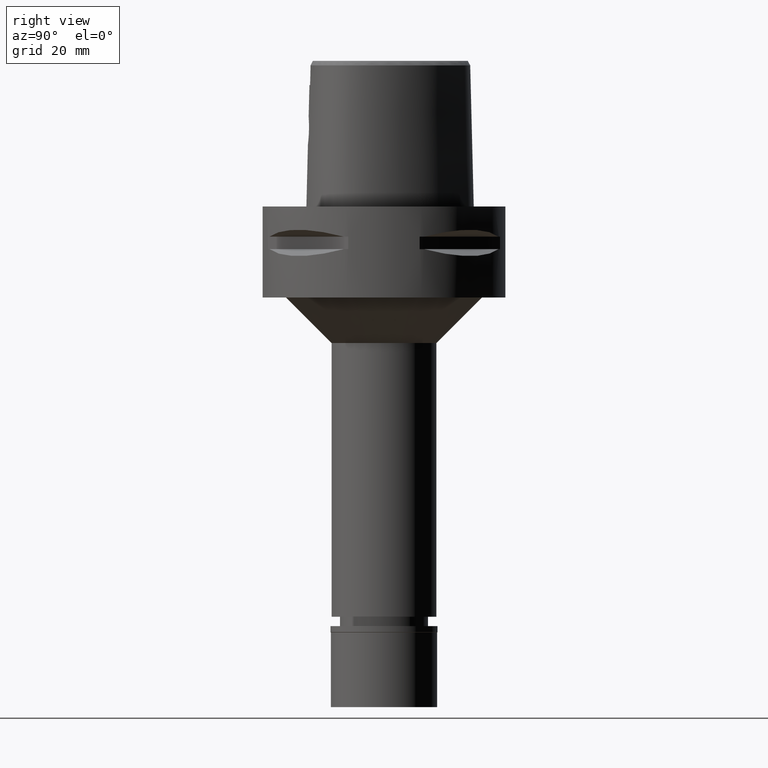
[diagram: clean part render]
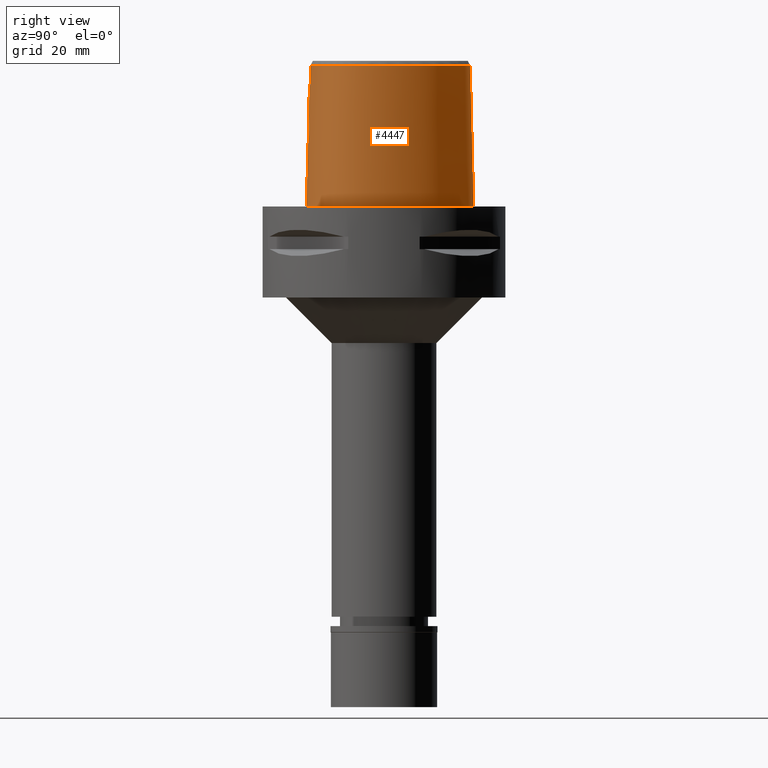
[diagram: same view with one face highlighted and labeled with its STEP entity id]
A machine part, right view. The second image highlights one B-rep face of the part: STEP entity #4447.
In plain terms, the highlighted face is a freeform B-spline surface patch.
Its self-contained STEP definition (entity closure, byte-faithful):
#18 = CARTESIAN_POINT ( 'NONE',  ( -4.858283135684031119E-09, -24.74922215084299282, 33.03333351495449932 ) ) ;
#66 = CARTESIAN_POINT ( 'NONE',  ( 24.77458493493826452, -16.12173828124365826, 1.936385080059110919E-13 ) ) ;
#72 = CARTESIAN_POINT ( 'NONE',  ( 1.372734075386999954E-14, -24.83629963747999980, 29.55000000000000071 ) ) ;
#91 = CARTESIAN_POINT ( 'NONE',  ( 13.21796080545518492, 24.04386718749153928, 1.936385080059110919E-13 ) ) ;
#102 = CARTESIAN_POINT ( 'NONE',  ( 3.756465253620394407, -24.73852494831059445, 27.57169756946008832 ) ) ;
#110 = CARTESIAN_POINT ( 'NONE',  ( -0.5689009026262999980, -25.59577917864000085, -0.9304145084881000338 ) ) ;
#121 = CARTESIAN_POINT ( 'NONE',  ( 27.85475989744193015, -5.337968749999598472, 1.936385080059110919E-13 ) ) ;
#129 = CARTESIAN_POINT ( 'NONE',  ( 4.517116520646564659, -24.75057419275596615, 24.43553773667434470 ) ) ;
#134 = CARTESIAN_POINT ( 'NONE',  ( 23.44929528211999781, -17.78045352003999824, -0.9304145084881000338 ) ) ;
#150 = CARTESIAN_POINT ( 'NONE',  ( 2.592678685477895595, -24.78641481269933777, 28.73923899945411620 ) ) ;
#154 = CARTESIAN_POINT ( 'NONE',  ( 2.354169165264999641, -24.81494117422000301, 31.32395511910000252 ) ) ;
#174 = CARTESIAN_POINT ( 'NONE',  ( 3.512978482362885568, -24.74890643940148394, 27.89278862329918240 ) ) ;
#179 = CARTESIAN_POINT ( 'NONE',  ( -0.5548491714916000683, -24.38637853483000129, 47.45113993289000121 ) ) ;
#204 = CARTESIAN_POINT ( 'NONE',  ( 26.73375369477999897, -11.30662581238999920, 15.19677030531000206 ) ) ;
#226 = CARTESIAN_POINT ( 'NONE',  ( 6.271543170821000324, 28.37237220595000053, -0.9304145084881000338 ) ) ;
#280 = CARTESIAN_POINT ( 'NONE',  ( -1.344666072917000002E-11, 28.41206021534999593, 46.52071719450999154 ) ) ;
#285 = CARTESIAN_POINT ( 'NONE',  ( 5.957940668506999771, 27.62557844127000095, 31.32395511910000252 ) ) ;
#310 = CARTESIAN_POINT ( 'NONE',  ( 26.79474625850000180, 1.906447387536000182, -0.9304145084881000338 ) ) ;
#330 = CARTESIAN_POINT ( 'NONE',  ( 8.153873202538507670, -23.84765792154550113, 46.52069127368177703 ) ) ;
#336 = CARTESIAN_POINT ( 'NONE',  ( 25.62380423723999812, 1.595558235651999945, 47.45113993289000121 ) ) ;
#395 = CARTESIAN_POINT ( 'NONE',  ( 1.732112786592047815, -25.02412118468005531, 20.79259001707724508 ) ) ;
#412 = DIRECTION ( 'NONE',  ( -5.053220550043809941E-13, -0.02499051295420905497, -0.9996876883618630583 ) ) ;
#442 = B_SPLINE_CURVE_WITH_KNOTS ( 'NONE', 3,
 ( #1051, #3868, #5037, #1516 ),
 .UNSPECIFIED., .F., .F.,
 ( 4, 4 ),
 ( 0.0000000000000000000, 1.000000000000000000 ),
 .UNSPECIFIED. ) ;
#474 = EDGE_LOOP ( 'NONE', ( #2315, #4900, #3980, #4827, #3708, #725, #4693, #1430 ) ) ;
#476 = CARTESIAN_POINT ( 'NONE',  ( 3.196341748950112027, -24.92467674393278898, 21.76178677583788357 ) ) ;
#505 = CARTESIAN_POINT ( 'NONE',  ( 4.255303340876159801, -24.72011691775877296, 26.61166571686793958 ) ) ;
#510 = CARTESIAN_POINT ( 'NONE',  ( 26.34453530897999940, -11.19579296915999755, 31.32395511910000252 ) ) ;
#534 = CARTESIAN_POINT ( 'NONE',  ( 4.437987378315740195, -24.71842636459945552, 26.01433587875822440 ) ) ;
#539 = CARTESIAN_POINT ( 'NONE',  ( -0.8462047057259000082, -25.18772799770000148, 15.19677030531000206 ) ) ;
#540 = VECTOR ( 'NONE', #412, 1000.000000000000114 ) ;
#549 = CARTESIAN_POINT ( 'NONE',  ( 23.43253028748441480, -17.76420410156499230, 1.936385080059110919E-13 ) ) ;
#551 = EDGE_CURVE ( 'NONE', #883, #2701, #2817, .T. ) ;
#558 = CARTESIAN_POINT ( 'NONE',  ( 4.523121810470201787, -24.72136632330987993, 25.57645994462144401 ) ) ;
#562 = CARTESIAN_POINT ( 'NONE',  ( 6.584202213324999775, -24.46732445111000231, 31.32395511910000252 ) ) ;
#569 = CARTESIAN_POINT ( 'NONE',  ( 21.42129059363730192, -19.59889648437211207, 1.936385080059110919E-13 ) ) ;
#580 = CARTESIAN_POINT ( 'NONE',  ( 4.043275511959485868, -24.83139551622599583, 22.91194186429490642 ) ) ;
#584 = CARTESIAN_POINT ( 'NONE',  ( 26.66096789088853924, -6.450661550927339505, 46.52070141660807678 ) ) ;
#585 = CARTESIAN_POINT ( 'NONE',  ( 26.37046814612999768, -13.40391019852000021, -0.9304145084881000338 ) ) ;
#606 = CARTESIAN_POINT ( 'NONE',  ( 1.153626000818432917, -24.82864766317860372, 29.44729853102414907 ) ) ;
#612 = CARTESIAN_POINT ( 'NONE',  ( 25.63065464978999941, -13.07945039994000069, 31.32395511910000252 ) ) ;
#688 = CARTESIAN_POINT ( 'NONE',  ( 17.14519264690000355, 19.02219895240999747, 31.32395511910000252 ) ) ;
#710 = CARTESIAN_POINT ( 'NONE',  ( 10.99875819582650038, 24.38035098655915078, 46.52071268652615288 ) ) ;
#716 = CARTESIAN_POINT ( 'NONE',  ( 26.36214108449999927, -1.945111154234999917, 47.45113993289000121 ) ) ;
#725 = ORIENTED_EDGE ( 'NONE', *, *, #2553, .F. ) ;
#733 = CARTESIAN_POINT ( 'NONE',  ( 17.84219066873730242, -20.48406917474295952, 46.52069465465719134 ) ) ;
#738 = CARTESIAN_POINT ( 'NONE',  ( 2.892852094095000215, 28.17405733916999822, 47.45113993289000121 ) ) ;
#767 = CARTESIAN_POINT ( 'NONE',  ( 1.372734075386999954E-14, -24.83629963747999980, 29.55000000000000071 ) ) ;
#799 = CARTESIAN_POINT ( 'NONE',  ( 3.100243586364356485, -24.93331626314397909, 21.66917441973969716 ) ) ;
#823 = CARTESIAN_POINT ( 'NONE',  ( 2.955264688608111534, -24.94567926532404201, 21.53931554468372767 ) ) ;
#857 = VERTEX_POINT ( 'NONE', #2557 ) ;
#876 = CARTESIAN_POINT ( 'NONE',  ( 3.156365463052560827, -24.92830912253881337, 21.72269515073477919 ) ) ;
#883 = VERTEX_POINT ( 'NONE', #2168 ) ;
#891 = CARTESIAN_POINT ( 'NONE',  ( -1.467048192861000018E-12, -25.06378435148999984, 20.44999999999999929 ) ) ;
#898 = CARTESIAN_POINT ( 'NONE',  ( 3.560464869665294074, -24.88898092548868490, 22.16607190872599631 ) ) ;
#902 = CARTESIAN_POINT ( 'NONE',  ( 26.90338675189000028, -8.653104851888999249, 31.32395511910000252 ) ) ;
#909 = VERTEX_POINT ( 'NONE', #891 ) ;
#920 = CARTESIAN_POINT ( 'NONE',  ( 3.739368471919781722, -24.86915408846631337, 22.40675187304728411 ) ) ;
#926 = CARTESIAN_POINT ( 'NONE',  ( 23.81701504514999712, -15.41783915067999899, 47.45113993289000121 ) ) ;
#947 = CARTESIAN_POINT ( 'NONE',  ( 3.937353243848183304, -24.84519667286566147, 22.71482954510167929 ) ) ;
#954 = CARTESIAN_POINT ( 'NONE',  ( 18.36798846343999969, -21.11924011246999910, 15.19677030531000206 ) ) ;
#968 = CARTESIAN_POINT ( 'NONE',  ( 2.676740185523932336, -25.57499999999909690, 1.936385080059110919E-13 ) ) ;
#976 = CARTESIAN_POINT ( 'NONE',  ( 3.861082105047249691, -24.85463631592573819, 22.58840412900303107 ) ) ;
#980 = CARTESIAN_POINT ( 'NONE',  ( 24.14246363514000038, -15.65707284211999983, 31.32395511910000252 ) ) ;
#998 = CARTESIAN_POINT ( 'NONE',  ( 3.458990831523887088, -24.75121472495258246, 27.95724070545702133 ) ) ;
#1002 = CARTESIAN_POINT ( 'NONE',  ( 22.86810880140999913, -17.21714034622999989, 31.32395511910000252 ) ) ;
#1025 = EDGE_CURVE ( 'NONE', #4698, #2701, #442, .T. ) ;
#1031 = CARTESIAN_POINT ( 'NONE',  ( -0.8299363393493000007, 28.36186519450000176, 47.45113993289000121 ) ) ;
#1051 = CARTESIAN_POINT ( 'NONE',  ( 4.602926386878999132, -24.35121850029999990, 40.00000005214999987 ) ) ;
#1059 = CARTESIAN_POINT ( 'NONE',  ( 22.00846691978999914, 12.70659196185999917, 15.19677030531000206 ) ) ;
#1078 = CARTESIAN_POINT ( 'NONE',  ( 26.53043812451489103, -3.252830914797765871, 46.52070254359987445 ) ) ;
#1085 = CARTESIAN_POINT ( 'NONE',  ( 16.83227267690000062, 18.76477910611999889, 47.45113993289000121 ) ) ;
#1112 = CARTESIAN_POINT ( 'NONE',  ( 27.16099297695999937, -1.823107493840000037, 15.19677030531000206 ) ) ;
#1187 = CARTESIAN_POINT ( 'NONE',  ( 1.541632511944354134, -24.57506718866263284, 40.00000010061339140 ) ) ;
#1224 = CARTESIAN_POINT ( 'NONE',  ( -4.849489465481114265E-09, -24.66214466420069229, 36.51666702990934255 ) ) ;
#1225 = CARTESIAN_POINT ( 'NONE',  ( 1.717599865389534131, -25.02478947459729497, 20.78664336873126928 ) ) ;
#1227 = VERTEX_POINT ( 'NONE', #1624 ) ;
#1256 = B_SPLINE_CURVE_WITH_KNOTS ( 'NONE', 3,
 ( #2718, #2352, #1187, #3981 ),
 .UNSPECIFIED., .F., .F.,
 ( 4, 4 ),
 ( 0.0000000000000000000, 1.000000000000000000 ),
 .UNSPECIFIED. ) ;
#1266 = CARTESIAN_POINT ( 'NONE',  ( 25.20914249986367039, 6.827421875000078799, 1.936385080059110919E-13 ) ) ;
#1274 = CARTESIAN_POINT ( 'NONE',  ( 1.952635857166629574, -25.01389984458334226, 20.88358337727349578 ) ) ;
#1305 = CARTESIAN_POINT ( 'NONE',  ( 4.412773899541610589, -24.77516587915418711, 23.85162301166201360 ) ) ;
#1319 = CARTESIAN_POINT ( 'NONE',  ( 11.74025985475885925, -24.13566406250557961, 1.936385080059110919E-13 ) ) ;
#1327 = CARTESIAN_POINT ( 'NONE',  ( 3.227783996387032062, -24.76107025147648244, 28.20686722737176666 ) ) ;
#1331 = CARTESIAN_POINT ( 'NONE',  ( -0.8321552616341000297, -24.38153492969000169, 47.45113993289000121 ) ) ;
#1337 = CARTESIAN_POINT ( 'NONE',  ( 3.149084874525346134, 29.34015624999947391, 1.936385080059110919E-13 ) ) ;
#1345 = CARTESIAN_POINT ( 'NONE',  ( 3.695416430653969186, -24.87420445000564229, 22.34444809527642661 ) ) ;
#1351 = CARTESIAN_POINT ( 'NONE',  ( 2.334473170698999844, -24.41160993157999926, 47.45113993289000121 ) ) ;
#1363 = CARTESIAN_POINT ( 'NONE',  ( 6.262496944792713904, 28.35083007812269784, 1.936385080059110919E-13 ) ) ;
#1374 = CARTESIAN_POINT ( 'NONE',  ( 3.666127388018138422, -24.74236822830306082, 27.69981209000894040 ) ) ;
#1380 = CARTESIAN_POINT ( 'NONE',  ( 21.43542293296000167, -19.61750339194999881, -0.9304145084881000338 ) ) ;
#1400 = CARTESIAN_POINT ( 'NONE',  ( 2.560989721132870489, -24.78761092133475330, 28.76100236096378282 ) ) ;
#1404 = CARTESIAN_POINT ( 'NONE',  ( 14.86558285813000069, -21.85772789175999975, 47.45113993289000121 ) ) ;
#1422 = CARTESIAN_POINT ( 'NONE',  ( 13.23332856345000152, 24.06149249962999903, -0.9304145084881000338 ) ) ;
#1430 = ORIENTED_EDGE ( 'NONE', *, *, #3459, .T. ) ;
#1452 = CARTESIAN_POINT ( 'NONE',  ( -0.5711750984050999458, 28.78275047861000147, 31.32395511910000252 ) ) ;
#1470 = CARTESIAN_POINT ( 'NONE',  ( 5.530043876418035964, 27.35846726636340875, 46.52071494050975531 ) ) ;
#1475 = CARTESIAN_POINT ( 'NONE',  ( 0.7484115208160000421, 29.63215901995999957, -0.9304145084881000338 ) ) ;
#1501 = CARTESIAN_POINT ( 'NONE',  ( 12.43420514770999930, 23.14497626841999889, 47.45113993289000121 ) ) ;
#1502 = CARTESIAN_POINT ( 'NONE',  ( -1.451045074373000022E-08, -24.57504746727000011, 40.00000005214000254 ) ) ;
#1516 = CARTESIAN_POINT ( 'NONE',  ( 4.472216720976999405, -24.20009030094000124, 46.52069014668999358 ) ) ;
#1520 = CARTESIAN_POINT ( 'NONE',  ( 24.69258566271476951, -14.08975149522207815, 46.52069831738057104 ) ) ;
#1527 = CARTESIAN_POINT ( 'NONE',  ( -0.8562942210795000397, 28.76413530191999968, 31.32395511910000252 ) ) ;
#1550 = CARTESIAN_POINT ( 'NONE',  ( 11.70978320535569672, -23.05272019185310484, 46.52069240067361022 ) ) ;
#1557 = CARTESIAN_POINT ( 'NONE',  ( 1.609901483201681804, -25.02958960435420366, 20.74402583925055055 ) ) ;
#1608 = CARTESIAN_POINT ( 'NONE',  ( 3.418326490945260421, -24.90370471633881166, 21.99337763265281964 ) ) ;
#1624 = CARTESIAN_POINT ( 'NONE',  ( -1.180411260321999901E-11, -25.57499999999999929, 5.639932965095998436E-14 ) ) ;
#1702 = CARTESIAN_POINT ( 'NONE',  ( 6.691850463824464690, -25.24546875000320512, 1.936385080059110919E-13 ) ) ;
#1713 = CARTESIAN_POINT ( 'NONE',  ( 4.301663164393235483, -24.71910450366888767, 26.48607042045131976 ) ) ;
#1717 = CARTESIAN_POINT ( 'NONE',  ( 15.01246783751000002, -22.23414196204000248, 31.32395511910000252 ) ) ;
#1734 = CARTESIAN_POINT ( 'NONE',  ( 2.744259390201259752, -24.78063453097679414, 28.63060330404775655 ) ) ;
#1738 = CARTESIAN_POINT ( 'NONE',  ( 24.46791222514000097, -15.89630653355000156, 15.19677030531000206 ) ) ;
#1745 = CARTESIAN_POINT ( 'NONE',  ( 26.77222814270692552, 1.900468749999807194, 1.936385080059110919E-13 ) ) ;
#1754 = CARTESIAN_POINT ( 'NONE',  ( 4.544345534604060433, -24.73984392723427206, 24.75509518056023595 ) ) ;
#1760 = CARTESIAN_POINT ( 'NONE',  ( -0.8391799836800000190, -24.78463146369999848, 31.32395511910000252 ) ) ;
#1781 = CARTESIAN_POINT ( 'NONE',  ( 4.537017841947838193, -24.74324082396890034, 24.64916680772596536 ) ) ;
#1788 = CARTESIAN_POINT ( 'NONE',  ( 6.695047936613000239, -25.26858194700000126, -0.9304145084881000338 ) ) ;
#1811 = CARTESIAN_POINT ( 'NONE',  ( 25.95531692319000072, -11.08496012592000213, 47.45113993289000121 ) ) ;
#1834 = CARTESIAN_POINT ( 'NONE',  ( 3.154109046676000006, 29.36302093453000239, -0.9304145084881000338 ) ) ;
#1891 = CARTESIAN_POINT ( 'NONE',  ( 5.801139417351000027, 27.25218155893000116, 47.45113993289000121 ) ) ;
#1916 = CARTESIAN_POINT ( 'NONE',  ( 25.23075706255999862, 6.836210430866999310, -0.9304145084881000338 ) ) ;
#1933 = LINE ( 'NONE', #4006, #540 ) ;
#1936 = CARTESIAN_POINT ( 'NONE',  ( 26.56868348264517365, -7.988862950299195020, 46.52070085311217440 ) ) ;
#1944 = CARTESIAN_POINT ( 'NONE',  ( 24.48145222242999708, 6.531540494147000331, 31.32395511910000252 ) ) ;
#1976 = CARTESIAN_POINT ( 'NONE',  ( 2.192364263587614381, -25.00047163864963196, 21.00192190659220870 ) ) ;
#2096 = CARTESIAN_POINT ( 'NONE',  ( 27.68378753843713369, -8.751933593749983586, 1.936385080059110919E-13 ) ) ;
#2105 = CARTESIAN_POINT ( 'NONE',  ( 4.337077477086221045, -24.71860659089787049, 26.37767366826318494 ) ) ;
#2110 = CARTESIAN_POINT ( 'NONE',  ( 27.06950057439000190, -5.357664960371000262, 31.32395511910000252 ) ) ;
#2121 = CARTESIAN_POINT ( 'NONE',  ( 15.29776366286365530, -22.96525390624768193, 1.936385080059110919E-13 ) ) ;
#2133 = CARTESIAN_POINT ( 'NONE',  ( 3.252660951006618895, -24.76001264346000497, 28.18163816682488232 ) ) ;
#2138 = CARTESIAN_POINT ( 'NONE',  ( 6.528779351682000076, -24.06669570316000062, 47.45113993289000121 ) ) ;
#2146 = CARTESIAN_POINT ( 'NONE',  ( 27.10051717370692970, -11.41106445312596485, 1.936385080059110919E-13 ) ) ;
#2155 = CARTESIAN_POINT ( 'NONE',  ( 4.208386412724068215, -24.72133790640166495, 26.72975093107613631 ) ) ;
#2159 = CARTESIAN_POINT ( 'NONE',  ( 25.30843713770000036, -14.61183299400000024, 15.19677030531000206 ) ) ;
#2168 = CARTESIAN_POINT ( 'NONE',  ( -1.344666072917000002E-11, 28.41206021534999593, 46.52071719450999154 ) ) ;
#2174 = CARTESIAN_POINT ( 'NONE',  ( 4.212885333431600543, -24.72121330192674193, 26.71877560768000492 ) ) ;
#2178 = CARTESIAN_POINT ( 'NONE',  ( 22.57751556106000024, -16.93548375932999761, 47.45113993289000121 ) ) ;
#2200 = CARTESIAN_POINT ( 'NONE',  ( 0.5545157691441516823, -24.83629963747999980, 29.55000000000000071 ) ) ;
#2206 = CARTESIAN_POINT ( 'NONE',  ( 25.26074790161000294, -12.91722050065999916, 47.45113993289000121 ) ) ;
#2246 = CARTESIAN_POINT ( 'NONE',  ( 23.08984995680107133, -16.35075897049449623, 46.52069719038878048 ) ) ;
#2269 = EDGE_CURVE ( 'NONE', #883, #857, #3881, .T. ) ;
#2282 = CARTESIAN_POINT ( 'NONE',  ( 9.105791459169999769, 26.46675913444000017, 15.19677030531000206 ) ) ;
#2291 = VERTEX_POINT ( 'NONE', #1502 ) ;
#2302 = CARTESIAN_POINT ( 'NONE',  ( 26.30769162470627975, -1.593520748815488330, 46.52070310709577683 ) ) ;
#2309 = CARTESIAN_POINT ( 'NONE',  ( 24.85610464249000273, 6.683875462506999376, 15.19677030531000206 ) ) ;
#2315 = ORIENTED_EDGE ( 'NONE', *, *, #2269, .F. ) ;
#2326 = CARTESIAN_POINT ( 'NONE',  ( 13.63304938779966768, 22.11238814014000553, 46.52071155953435522 ) ) ;
#2332 = CARTESIAN_POINT ( 'NONE',  ( 22.35908247837000218, 12.90902243090999946, -0.9304145084881000338 ) ) ;
#2352 = CARTESIAN_POINT ( 'NONE',  ( 3.083107003972780813, -24.50056602138241857, 40.00000010061339850 ) ) ;
#2362 = CARTESIAN_POINT ( 'NONE',  ( 0.5741109003797177923, -25.06046598330700093, 20.47661985235027160 ) ) ;
#2452 = VECTOR ( 'NONE', #2700, 1000.000000000000227 ) ;
#2493 = CARTESIAN_POINT ( 'NONE',  ( 3.606429171763831931, -24.88406245827872354, 22.22480142265834502 ) ) ;
#2498 = CARTESIAN_POINT ( 'NONE',  ( 27.87808443179000051, -5.337383714047999383, -0.9304145084881000338 ) ) ;
#2517 = CARTESIAN_POINT ( 'NONE',  ( 4.550159243768820971, -24.72595648767389065, 25.28426205013431272 ) ) ;
#2522 = CARTESIAN_POINT ( 'NONE',  ( 2.373865159830000238, -25.21827241685999610, 15.19677030531000206 ) ) ;
#2541 = CARTESIAN_POINT ( 'NONE',  ( 4.141553595727621051, -24.81790787904300899, 23.11546483665197016 ) ) ;
#2546 = CARTESIAN_POINT ( 'NONE',  ( 26.66520864569000082, -5.367805583532000213, 47.45113993289000121 ) ) ;
#2553 = EDGE_CURVE ( 'NONE', #909, #4617, #4982, .T. ) ;
#2555 = CARTESIAN_POINT ( 'NONE',  ( 25.63812389860136065, -14.80217773437518325, 1.936385080059110919E-13 ) ) ;
#2557 = CARTESIAN_POINT ( 'NONE',  ( 3.071360863650999976E-11, 29.57499999998999840, 4.999704354228999432E-14 ) ) ;
#2564 = CARTESIAN_POINT ( 'NONE',  ( 4.325577296999668420, -24.79069917426006242, 23.55238152010286612 ) ) ;
#2570 = CARTESIAN_POINT ( 'NONE',  ( 15.15935281690000025, -22.61055603232999900, 15.19677030531000206 ) ) ;
#2586 = CARTESIAN_POINT ( 'NONE',  ( 1.779627886569931317, -24.81238721778816014, 29.18772178098401326 ) ) ;
#2592 = CARTESIAN_POINT ( 'NONE',  ( 24.60869380845000265, -14.20783599401000075, 47.45113993289000121 ) ) ;
#2669 = CARTESIAN_POINT ( 'NONE',  ( 26.40443225142000117, 1.802817670242000014, 15.19677030531000206 ) ) ;
#2691 = CARTESIAN_POINT ( 'NONE',  ( 1.375467128702860808, 28.41206022877951298, 46.52071663099748378 ) ) ;
#2698 = CARTESIAN_POINT ( 'NONE',  ( 3.067023395816000253, 28.96669973608000248, 15.19677030531000206 ) ) ;
#2700 = DIRECTION ( 'NONE',  ( 9.489638221839231937E-13, 0.02499051293976060906, -0.9996876883622242138 ) ) ;
#2701 = VERTEX_POINT ( 'NONE', #4992 ) ;
#2718 = CARTESIAN_POINT ( 'NONE',  ( 4.602926386878999132, -24.35121850029999990, 40.00000005214999987 ) ) ;
#2719 = CARTESIAN_POINT ( 'NONE',  ( 23.53784508590017310, -15.81022840324934187, 46.52069747213671747 ) ) ;
#2777 = CARTESIAN_POINT ( 'NONE',  ( 1.372734075386999954E-14, -24.83629963747999980, 29.55000000000000071 ) ) ;
#2778 = CARTESIAN_POINT ( 'NONE',  ( 1.157035249423385981, -25.04636291852922270, 20.59695966232725439 ) ) ;
#2807 = CARTESIAN_POINT ( 'NONE',  ( 3.180359783745228874, -24.92613363770006885, 21.74608895217526339 ) ) ;
#2817 = B_SPLINE_CURVE_WITH_KNOTS ( 'NONE', 3,
 ( #280, #2691, #4279, #1470, #4949, #710, #2326, #3921, #3748, #2302, #1078, #584, #1936, #4708, #3896, #1520, #3062, #2719, #2246, #4557, #4653, #733, #2962, #1550, #330, #3535 ),
 .UNSPECIFIED., .F., .F.,
 ( 4, 2, 2, 2, 2, 2, 2, 2, 2, 2, 2, 2, 4 ),
 ( 0.0000000000000000000, 0.06250000000000005551, 0.1250000000000001388, 0.2500000000000002220, 0.5000000000000003331, 0.5625000000000003331, 0.6250000000000004441, 0.6875000000000004441, 0.7187500000000005551, 0.7500000000000005551, 0.8125000000000003331, 0.8750000000000002220, 1.000000000000000000 ),
 .UNSPECIFIED. ) ;
#2862 = CARTESIAN_POINT ( 'NONE',  ( 2.890648186359091376, -24.95092863274545181, 21.48525694161331856 ) ) ;
#2879 = CARTESIAN_POINT ( 'NONE',  ( 22.33885465768270251, 12.89734375000327127, 1.936385080059110919E-13 ) ) ;
#2895 = CARTESIAN_POINT ( 'NONE',  ( 27.30517725585000122, -8.703986976411000498, 15.19677030531000206 ) ) ;
#2911 = CARTESIAN_POINT ( 'NONE',  ( 3.115833847004890522, -24.76582665838796871, 28.31908668410575203 ) ) ;
#2915 = CARTESIAN_POINT ( 'NONE',  ( 11.43012067991999992, -22.98864605308000009, 47.45113993289000121 ) ) ;
#2922 = CARTESIAN_POINT ( 'NONE',  ( 27.53737511859980813, -1.765625000000520473, 1.936385080059110919E-13 ) ) ;
#2930 = CARTESIAN_POINT ( 'NONE',  ( 3.996558060065838358, -24.72854169055268159, 27.19514510550434849 ) ) ;
#2937 = CARTESIAN_POINT ( 'NONE',  ( 26.50159624792000201, -8.602222727365999688, 47.45113993289000121 ) ) ;
#2948 = CARTESIAN_POINT ( 'NONE',  ( 1.049694958193650773, 29.57499999999500417, 1.936385080059110919E-13 ) ) ;
#2957 = CARTESIAN_POINT ( 'NONE',  ( 2.832428424601074912, -24.77719445135567966, 28.56165880794260659 ) ) ;
#2962 = CARTESIAN_POINT ( 'NONE',  ( 16.39076485917603421, -21.20751266142971048, 46.52069409116131737 ) ) ;
#2963 = CARTESIAN_POINT ( 'NONE',  ( -0.8532294277717999975, -25.59082453171000182, -0.9304145084881000338 ) ) ;
#2983 = CARTESIAN_POINT ( 'NONE',  ( 1.883305297023831759, -24.80958828430668461, 29.14211520706646041 ) ) ;
#2987 = CARTESIAN_POINT ( 'NONE',  ( 21.19046238470000176, -19.29498366059999981, 15.19677030531000206 ) ) ;
#3011 = CARTESIAN_POINT ( 'NONE',  ( 0.6828676546388999791, 28.41974803165000196, 47.45113993289000121 ) ) ;
#3041 = CARTESIAN_POINT ( 'NONE',  ( 6.114741919663999603, 27.99897532360999719, 15.19677030531000206 ) ) ;
#3062 = CARTESIAN_POINT ( 'NONE',  ( 24.33934953590697248, -14.68006085516426928, 46.52069803563263406 ) ) ;
#3070 = CARTESIAN_POINT ( 'NONE',  ( 2.979937744954999967, 28.57037853762000168, 31.32395511910000252 ) ) ;
#3092 = CARTESIAN_POINT ( 'NONE',  ( 24.10679980236999853, 6.379205525787000397, 47.45113993289000121 ) ) ;
#3094 = CARTESIAN_POINT ( 'NONE',  ( -1.344666072917000002E-11, 28.41206021534999593, 46.52071719450999154 ) ) ;
#3146 = CARTESIAN_POINT ( 'NONE',  ( 1.726554843534537254, -25.02437791916835863, 20.79030502623887244 ) ) ;
#3169 = CARTESIAN_POINT ( 'NONE',  ( 1.672780685871506190, -25.02682213713908865, 20.76857498625506082 ) ) ;
#3198 = CARTESIAN_POINT ( 'NONE',  ( 0.2837429639712363838, -25.06378435148999984, 20.45000000000000639 ) ) ;
#3227 = CARTESIAN_POINT ( 'NONE',  ( 1.704163054240332764, -25.02540437729527767, 20.78117410888069827 ) ) ;
#3251 = CARTESIAN_POINT ( 'NONE',  ( -1.467048192861000018E-12, -25.06378435148999984, 20.44999999999999929 ) ) ;
#3258 = EDGE_CURVE ( 'NONE', #909, #1227, #1933, .T. ) ;
#3295 = CARTESIAN_POINT ( 'NONE',  ( -1.180411260321999901E-11, -25.57499999999999929, 5.639932965095998436E-14 ) ) ;
#3305 = CARTESIAN_POINT ( 'NONE',  ( 3.373359712603105631, -24.75487047605666291, 28.05365220515218638 ) ) ;
#3309 = CARTESIAN_POINT ( 'NONE',  ( 11.64093423667000060, -23.76831842549999863, 15.19677030531000206 ) ) ;
#3327 = CARTESIAN_POINT ( 'NONE',  ( 2.284825071854698741, -24.79755434855703911, 28.93755567618812918 ) ) ;
#3331 = CARTESIAN_POINT ( 'NONE',  ( 15.30623779628999870, -22.98697010260999818, -0.9304145084881000338 ) ) ;
#3339 = CARTESIAN_POINT ( 'NONE',  ( 17.75297951169826050, 19.52218749999231306, 1.936385080059110919E-13 ) ) ;
#3349 = EDGE_CURVE ( 'NONE', #4698, #2291, #1256, .T. ) ;
#3351 = CARTESIAN_POINT ( 'NONE',  ( 4.186622009783886433, -24.81141158316093609, 23.21777758281611526 ) ) ;
#3359 = FACE_OUTER_BOUND ( 'NONE', #474, .T. ) ;
#3381 = CARTESIAN_POINT ( 'NONE',  ( 3.237005511786715584, -24.76067832112077483, 28.19756469887045114 ) ) ;
#3385 = CARTESIAN_POINT ( 'NONE',  ( 2.393561154396000035, -25.62160365948999896, -0.9304145084881000338 ) ) ;
#3404 = CARTESIAN_POINT ( 'NONE',  ( 27.70696775981999949, -8.754869100934000059, -0.9304145084881000338 ) ) ;
#3429 = CARTESIAN_POINT ( 'NONE',  ( 26.76156703072999932, -1.884109324037999800, 31.32395511910000252 ) ) ;
#3459 = EDGE_CURVE ( 'NONE', #1227, #857, #4602, .T. ) ;
#3464 = CARTESIAN_POINT ( 'NONE',  ( 12.96695409153999989, 23.75598708922999691, 15.19677030531000206 ) ) ;
#3490 = CARTESIAN_POINT ( 'NONE',  ( 0.7265635654237000418, 29.22802202384999859, 15.19677030531000206 ) ) ;
#3512 = CARTESIAN_POINT ( 'NONE',  ( 9.316733117680998433, 26.81182150707000034, -0.9304145084881000338 ) ) ;
#3535 = CARTESIAN_POINT ( 'NONE',  ( 4.472216720976999405, -24.20009030094000124, 46.52069014668999358 ) ) ;
#3542 = CARTESIAN_POINT ( 'NONE',  ( 21.30723580263000017, 12.30173102376999950, 47.45113993289000121 ) ) ;
#3567 = CARTESIAN_POINT ( 'NONE',  ( 4.602926386878999132, -24.35121850029999990, 40.00000005214999987 ) ) ;
#3568 = CARTESIAN_POINT ( 'NONE',  ( 3.051956606900625868, -24.93748982820228122, 21.62510482542849388 ) ) ;
#3592 = CARTESIAN_POINT ( 'NONE',  ( 2.697261088284059749, -24.96604596303033219, 21.33198344650103806 ) ) ;
#3663 = CARTESIAN_POINT ( 'NONE',  ( 26.34912737219712042, -13.39455078125327248, 1.936385080059110919E-13 ) ) ;
#3685 = CARTESIAN_POINT ( 'NONE',  ( 18.55019649082655064, -21.45394531249635151, 1.936385080059110919E-13 ) ) ;
#3695 = CARTESIAN_POINT ( 'NONE',  ( 4.220110851308596978, -24.72101730040710521, 26.70095761995009198 ) ) ;
#3700 = CARTESIAN_POINT ( 'NONE',  ( 11.74634101504999961, -24.15815461170999967, -0.9304145084881000338 ) ) ;
#3708 = ORIENTED_EDGE ( 'NONE', *, *, #4657, .T. ) ;
#3712 = CARTESIAN_POINT ( 'NONE',  ( 3.071360863650999976E-11, 29.57499999998999840, 4.999704354228999432E-14 ) ) ;
#3723 = CARTESIAN_POINT ( 'NONE',  ( 4.172398775490914424, -24.81348664747168442, 23.18477895933815347 ) ) ;
#3727 = CARTESIAN_POINT ( 'NONE',  ( -0.5595330818698999176, -24.78951208276999907, 31.32395511910000252 ) ) ;
#3744 = CARTESIAN_POINT ( 'NONE',  ( 3.275992991611894389, -24.75902016830564989, 28.15772619068093618 ) ) ;
#3748 = CARTESIAN_POINT ( 'NONE',  ( 24.48700992949116895, 6.834036305496048236, 46.52070592457529585 ) ) ;
#3749 = CARTESIAN_POINT ( 'NONE',  ( 27.56041892318999942, -1.762105663643000142, -0.9304145084881000338 ) ) ;
#3766 = CARTESIAN_POINT ( 'NONE',  ( 4.115420520914923941, -24.72394829500669289, 26.95489229165172063 ) ) ;
#3792 = B_SPLINE_SURFACE_WITH_KNOTS ( 'NONE', 3, 3, ( 
 ( #2963, #539, #1760, #1331 ),
 ( #110, #4139, #3727, #179 ),
 ( #3385, #2522, #154, #1351 ),
 ( #1788, #4974, #562, #2138 ),
 ( #3700, #3309, #4092, #2915 ),
 ( #3331, #2570, #1717, #1404 ),
 ( #4950, #954, #4160, #4485 ),
 ( #1380, #2987, #4579, #4996 ),
 ( #134, #4505, #1002, #2178 ),
 ( #4558, #1738, #980, #926 ),
 ( #4115, #2159, #4921, #2592 ),
 ( #585, #4184, #612, #2206 ),
 ( #3799, #204, #510, #1811 ),
 ( #3404, #2895, #902, #2937 ),
 ( #2498, #4533, #2110, #2546 ),
 ( #3749, #1112, #3429, #716 ),
 ( #310, #2669, #3821, #336 ),
 ( #1916, #2309, #1944, #3092 ),
 ( #2332, #1059, #4683, #3542 ),
 ( #4254, #4637, #688, #1085 ),
 ( #1422, #3464, #3847, #1501 ),
 ( #3512, #2282, #3879, #4606 ),
 ( #226, #3041, #285, #1891 ),
 ( #1834, #2698, #3070, #738 ),
 ( #1475, #3490, #5051, #3011 ),
 ( #5021, #3929, #1452, #5096 ),
 ( #5072, #4288, #1527, #1031 ) ),
 .UNSPECIFIED., .F., .F., .F.,
 ( 4, 1, 1, 1, 1, 1, 1, 1, 1, 1, 1, 1, 1, 1, 1, 1, 1, 1, 1, 1, 1, 1, 1, 1, 4 ),
 ( 4, 4 ),
 ( -0.008851417483057000962, 0.0000000000000000000, 0.08333333333341000349, 0.1250000000001000033, 0.1666666666667000196, 0.2083333333333000081, 0.2500000000000000000, 0.2916666666666999919, 0.3124999999998999689, 0.3333333333332000326, 0.3541666666666000163, 0.3749999999998999689, 0.4166666666666000163, 0.4583333333332000326, 0.4999999999997999933, 0.5416666666664999852, 0.5833333333331000015, 0.6666666666664999852, 0.7499999999997000177, 0.8333333333329999704, 0.8749999999995999866, 0.9166666666663000340, 0.9583333333329000503, 1.000000000000000000, 1.012009199036000062 ),
 ( 4.566989578181000008E-09, 0.9999997670837000863 ),
 .UNSPECIFIED. ) ;
#3799 = CARTESIAN_POINT ( 'NONE',  ( 27.12297208057999853, -11.41745865561999906, -0.9304145084881000338 ) ) ;
#3821 = CARTESIAN_POINT ( 'NONE',  ( 26.01411824432999964, 1.699187952947000202, 31.32395511910000252 ) ) ;
#3847 = CARTESIAN_POINT ( 'NONE',  ( 12.70057961961999915, 23.45048167883000190, 31.32395511910000252 ) ) ;
#3868 = CARTESIAN_POINT ( 'NONE',  ( 4.560197243509509057, -24.30012338778693248, 42.17356341699667155 ) ) ;
#3879 = CARTESIAN_POINT ( 'NONE',  ( 8.894849800659001104, 26.12169676181000000, 31.32395511910000252 ) ) ;
#3881 = LINE ( 'NONE', #3094, #2452 ) ;
#3896 = CARTESIAN_POINT ( 'NONE',  ( 25.61240997289448984, -12.23358473965965842, 46.52069916262443883 ) ) ;
#3921 = CARTESIAN_POINT ( 'NONE',  ( 20.76159157986941750, 13.99289103072035090, 46.52070817855889118 ) ) ;
#3929 = CARTESIAN_POINT ( 'NONE',  ( -0.5886350993965999701, 29.18561926532999706, 15.19677030531000206 ) ) ;
#3980 = ORIENTED_EDGE ( 'NONE', *, *, #1025, .F. ) ;
#3981 = CARTESIAN_POINT ( 'NONE',  ( -1.451045074373000022E-08, -24.57504746727000011, 40.00000005214000254 ) ) ;
#4006 = CARTESIAN_POINT ( 'NONE',  ( -1.467048192861000018E-12, -25.06378435148999984, 20.44999999999999929 ) ) ;
#4037 = CARTESIAN_POINT ( 'NONE',  ( 1.483723097889273479, -25.03485232889443424, 20.69751684277686721 ) ) ;
#4088 = CARTESIAN_POINT ( 'NONE',  ( 4.549979298456326759, -24.73407938846013110, 24.96161245962010966 ) ) ;
#4092 = CARTESIAN_POINT ( 'NONE',  ( 11.53552745829999893, -23.37848223929000113, 31.32395511910000252 ) ) ;
#4110 = CARTESIAN_POINT ( 'NONE',  ( 3.329382130122030770, -24.75674668230305642, 28.10179055163080974 ) ) ;
#4115 = CARTESIAN_POINT ( 'NONE',  ( 25.65830880233000144, -14.81383149398999954, -0.9304145084881000338 ) ) ;
#4135 = CARTESIAN_POINT ( 'NONE',  ( 4.496850936021978384, -24.75618253903773436, 24.29074513878773800 ) ) ;
#4139 = CARTESIAN_POINT ( 'NONE',  ( -0.5642169922481000688, -25.19264563070000307, 15.19677030531000206 ) ) ;
#4155 = CARTESIAN_POINT ( 'NONE',  ( 4.402195190950401127, -24.71810392633526376, 26.16020714300088912 ) ) ;
#4160 = CARTESIAN_POINT ( 'NONE',  ( 18.17462484254999922, -20.76404275734000038, 31.32395511910000252 ) ) ;
#4178 = CARTESIAN_POINT ( 'NONE',  ( 2.087632527519904357, -24.80370565429674556, 29.04349576580156267 ) ) ;
#4184 = CARTESIAN_POINT ( 'NONE',  ( 26.00056139795999854, -13.24168029923000134, 15.19677030531000206 ) ) ;
#4254 = CARTESIAN_POINT ( 'NONE',  ( 17.77103258688999787, 19.53703864496999998, -0.9304145084881000338 ) ) ;
#4279 = CARTESIAN_POINT ( 'NONE',  ( 2.760678900603831032, 28.19254769430247265, 46.52071606750156008 ) ) ;
#4288 = CARTESIAN_POINT ( 'NONE',  ( -0.8826521028095999366, 29.16640540934000114, 15.19677030531000206 ) ) ;
#4367 = CARTESIAN_POINT ( 'NONE',  ( 2.568983978598813334, -24.97528315391448217, 21.24168007029557259 ) ) ;
#4370 = B_SPLINE_CURVE_WITH_KNOTS ( 'NONE', 3,
 ( #4419, #1224, #18, #2777 ),
 .UNSPECIFIED., .F., .F.,
 ( 4, 4 ),
 ( 0.0000000000000000000, 1.000000000000000000 ),
 .UNSPECIFIED. ) ;
#4392 = CARTESIAN_POINT ( 'NONE',  ( 1.011135947205886509, -25.05051087875797577, 20.56129276502834458 ) ) ;
#4419 = CARTESIAN_POINT ( 'NONE',  ( -1.451045074373000022E-08, -24.57504746727000011, 40.00000005214000254 ) ) ;
#4447 = ADVANCED_FACE ( 'NONE', ( #3359 ), #3792, .T. ) ;
#4481 = CARTESIAN_POINT ( 'NONE',  ( 1.986969619782773089, -24.80670454267240288, 29.09445024139261804 ) ) ;
#4485 = CARTESIAN_POINT ( 'NONE',  ( 17.98126122164999785, -20.40884540220999810, 47.45113993289000121 ) ) ;
#4500 = CARTESIAN_POINT ( 'NONE',  ( 3.005270379488024446, -24.77034733848100956, 28.41951852238070231 ) ) ;
#4505 = CARTESIAN_POINT ( 'NONE',  ( 23.15870204176999891, -17.49879693313999951, 15.19677030531000206 ) ) ;
#4527 = CARTESIAN_POINT ( 'NONE',  ( 2.410767390570151214, -24.79324877274598293, 28.86155595108219174 ) ) ;
#4533 = CARTESIAN_POINT ( 'NONE',  ( 27.47379250308999943, -5.347524337208999334, 15.19677030531000206 ) ) ;
#4552 = CARTESIAN_POINT ( 'NONE',  ( 4.547962263617892908, -24.73685171198798471, 24.85950514487635843 ) ) ;
#4557 = CARTESIAN_POINT ( 'NONE',  ( 21.61408639850450086, -17.89738970854889288, 46.52069634514494112 ) ) ;
#4558 = CARTESIAN_POINT ( 'NONE',  ( 24.79336081513000067, -16.13554022498000151, -0.9304145084881000338 ) ) ;
#4575 = CARTESIAN_POINT ( 'NONE',  ( 4.549574022937066253, -24.73494683104344105, 24.92875559372933836 ) ) ;
#4579 = CARTESIAN_POINT ( 'NONE',  ( 20.94550183643000096, -18.97246392925000080, 31.32395511910000252 ) ) ;
#4602 = B_SPLINE_CURVE_WITH_KNOTS ( 'NONE', 3,
 ( #3295, #968, #1702, #1319, #2121, #3685, #569, #549, #66, #2555, #3663, #2146, #2096, #121, #2922, #1745, #1266, #2879, #3339, #91, #4931, #1363, #1337, #2948, #3712 ),
 .UNSPECIFIED., .F., .F.,
 ( 4, 1, 1, 1, 1, 1, 1, 1, 1, 1, 1, 1, 1, 1, 1, 1, 1, 1, 1, 1, 1, 1, 4 ),
 ( 0.0000000000000000000, 0.08333333333341000349, 0.1250000000001000033, 0.1666666666667000196, 0.2083333333333000081, 0.2500000000000000000, 0.2916666666666999919, 0.3124999999998999689, 0.3333333333332000326, 0.3541666666666000163, 0.3749999999998999689, 0.4166666666666000163, 0.4583333333332000326, 0.4999999999997999933, 0.5416666666664999852, 0.5833333333331000015, 0.6666666666664999852, 0.7499999999997000177, 0.8333333333329999704, 0.8749999999995999866, 0.9166666666663000340, 0.9583333333329000503, 1.000000000000000000 ),
 .UNSPECIFIED. ) ;
#4606 = CARTESIAN_POINT ( 'NONE',  ( 8.683908142148000664, 25.77663438917000249, 47.45113993289000121 ) ) ;
#4617 = VERTEX_POINT ( 'NONE', #767 ) ;
#4637 = CARTESIAN_POINT ( 'NONE',  ( 17.45811261690000293, 19.27961879869000228, 15.19677030531000206 ) ) ;
#4653 = CARTESIAN_POINT ( 'NONE',  ( 20.45409312013823211, -18.82869992193694131, 46.52069578164905295 ) ) ;
#4657 = EDGE_CURVE ( 'NONE', #2291, #4617, #4370, .T. ) ;
#4683 = CARTESIAN_POINT ( 'NONE',  ( 21.65785136120999965, 12.50416149281000067, 31.32395511910000252 ) ) ;
#4693 = ORIENTED_EDGE ( 'NONE', *, *, #3258, .T. ) ;
#4698 = VERTEX_POINT ( 'NONE', #3567 ) ;
#4708 = CARTESIAN_POINT ( 'NONE',  ( 26.04423705949188417, -10.88022456237364111, 46.52069972612035542 ) ) ;
#4791 = CARTESIAN_POINT ( 'NONE',  ( 1.374979210368885818, -25.03889659011748137, 20.66206490747628521 ) ) ;
#4827 = ORIENTED_EDGE ( 'NONE', *, *, #3349, .T. ) ;
#4894 = CARTESIAN_POINT ( 'NONE',  ( 4.094115463334950356, -24.82458451489378959, 23.01236396660541317 ) ) ;
#4900 = ORIENTED_EDGE ( 'NONE', *, *, #551, .T. ) ;
#4916 = CARTESIAN_POINT ( 'NONE',  ( 1.813541865611361548, -24.81148519056480950, 29.17313109452412689 ) ) ;
#4921 = CARTESIAN_POINT ( 'NONE',  ( 24.95856547308000017, -14.40983449400000005, 31.32395511910000252 ) ) ;
#4931 = CARTESIAN_POINT ( 'NONE',  ( 9.304563406613059584, 26.79191406249519147, 1.936385080059110919E-13 ) ) ;
#4942 = CARTESIAN_POINT ( 'NONE',  ( 4.230858595537660527, -24.72073100376797328, 26.67421065539050318 ) ) ;
#4949 = CARTESIAN_POINT ( 'NONE',  ( 6.913370730853213963, 26.74336904842652629, 46.52071437701386714 ) ) ;
#4950 = CARTESIAN_POINT ( 'NONE',  ( 18.56135208434000106, -21.47443746759999783, -0.9304145084881000338 ) ) ;
#4970 = CARTESIAN_POINT ( 'NONE',  ( 2.653628212344014692, -24.78409939537357332, 28.69623435023024527 ) ) ;
#4974 = CARTESIAN_POINT ( 'NONE',  ( 6.639625074969000451, -24.86795319904999957, 15.19677030531000206 ) ) ;
#4982 = B_SPLINE_CURVE_WITH_KNOTS ( 'NONE', 3,
 ( #3251, #3198, #2362, #4392, #2778, #4791, #4037, #1557, #3169, #3227, #1225, #3146, #395, #1274, #1976, #4367, #3592, #2862, #823, #3568, #799, #876, #2807, #476, #5177, #5151, #1608, #898, #2493, #1345, #920, #976, #947, #580, #4894, #2541, #3723, #3351, #2564, #1305, #4135, #129, #1781, #1754, #4552, #4575, #4088, #2517, #558, #534, #4155, #2105, #1713, #505, #4942, #3695, #2174, #2155, #3766, #2930, #102, #1374, #174, #998, #3305, #4110, #3744, #2133, #3381, #1327, #2911, #4500, #2957, #1734, #4970, #150, #1400, #4527, #3327, #4178, #4481, #2983, #4916, #2586, #606, #2200, #72 ),
 .UNSPECIFIED., .F., .F.,
 ( 4, 2, 2, 1, 1, 1, 1, 2, 2, 2, 2, 2, 1, 1, 2, 2, 2, 2, 2, 2, 1, 2, 2, 2, 2, 1, 2, 2, 2, 2, 1, 1, 1, 2, 2, 2, 2, 2, 1, 1, 2, 2, 2, 1, 2, 2, 2, 1, 2, 2, 4 ),
 ( 0.0000000000000000000, 0.06249999999999486522, 0.09374999999999222844, 0.1093749999999907990, 0.1171874999999899664, 0.1210937499999896888, 0.1230468749999896888, 0.1240234374999897027, 0.1249999999999897166, 0.1874999999999941713, 0.2187499999999965306, 0.2343749999999976685, 0.2421874999999982236, 0.2460937499999985012, 0.2480468749999986400, 0.2499999999999987788, 0.2812499999999998890, 0.2968750000000004441, 0.3125000000000009437, 0.3437500000000020539, 0.3593750000000029421, 0.3671875000000030531, 0.3750000000000031086, 0.4375000000000027756, 0.4687500000000029421, 0.4843750000000033862, 0.4921875000000036637, 0.5000000000000038858, 0.5625000000000057732, 0.5937500000000067724, 0.6093750000000072164, 0.6171875000000074385, 0.6210937500000075495, 0.6230468750000076605, 0.6250000000000076605, 0.6875000000000109912, 0.7187500000000123235, 0.7343750000000129896, 0.7421875000000131006, 0.7460937500000132117, 0.7480468750000129896, 0.7500000000000128786, 0.7812500000000119904, 0.7968750000000115463, 0.8046875000000114353, 0.8125000000000112133, 0.8437500000000092149, 0.8593750000000081046, 0.8671875000000075495, 0.8750000000000069944, 1.000000000000000000 ),
 .UNSPECIFIED. ) ;
#4992 = CARTESIAN_POINT ( 'NONE',  ( 4.472216720976999405, -24.20009030094000124, 46.52069014668999358 ) ) ;
#4996 = CARTESIAN_POINT ( 'NONE',  ( 20.70054128816999750, -18.64994419790000180, 47.45113993289000121 ) ) ;
#5021 = CARTESIAN_POINT ( 'NONE',  ( -0.6060951003880999943, 29.58848805203999888, -0.9304145084881000338 ) ) ;
#5037 = CARTESIAN_POINT ( 'NONE',  ( 4.516620373932790145, -24.24973711153631939, 44.34712678184333612 ) ) ;
#5051 = CARTESIAN_POINT ( 'NONE',  ( 0.7047156100313001215, 28.82388502775000205, 31.32395511910000252 ) ) ;
#5072 = CARTESIAN_POINT ( 'NONE',  ( -0.9090099845396999445, 29.56867551675999906, -0.9304145084881000338 ) ) ;
#5096 = CARTESIAN_POINT ( 'NONE',  ( -0.5537150974136000325, 28.37988169190000320, 47.45113993289000121 ) ) ;
#5151 = CARTESIAN_POINT ( 'NONE',  ( 3.317903692992100417, -24.91347842919924105, 21.88291014845671967 ) ) ;
#5177 = CARTESIAN_POINT ( 'NONE',  ( 3.205701519811288147, -24.92381821717546941, 21.77105828208825500 ) ) ;